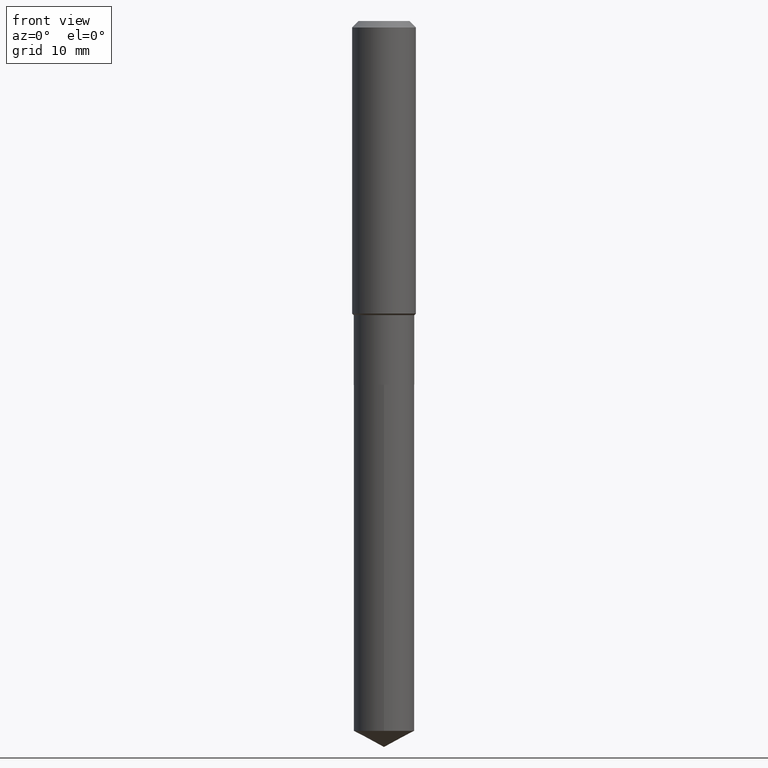
[diagram: clean part render]
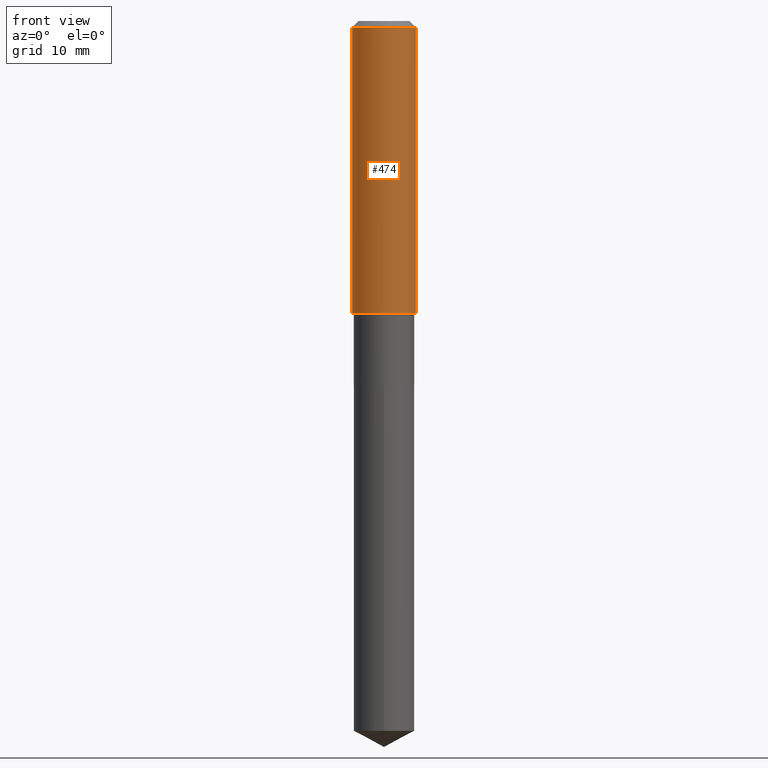
[diagram: same view with one face highlighted and labeled with its STEP entity id]
A machine part, front view. The second image highlights one B-rep face of the part: STEP entity #474.
In plain terms, the highlighted cylindrical surface (edge-blend (fillet) strip) has radius 4.0005 mm, axis along (-0, 0, 1).
Its self-contained STEP definition (entity closure, byte-faithful):
#6 = VECTOR ( 'NONE', #185, 39.37007874015748143 ) ;
#10 = VERTEX_POINT ( 'NONE', #211 ) ;
#21 = CIRCLE ( 'NONE', #332, 0.1575000000000001676 ) ;
#24 = DIRECTION ( 'NONE',  ( -2.445468806185136597E-29, 3.491481338843145583E-15, 1.000000000000000000 ) ) ;
#41 = DIRECTION ( 'NONE',  ( 1.000000000000000000, -6.982962677686267499E-15, 4.876176775795936353E-29 ) ) ;
#47 = CARTESIAN_POINT ( 'NONE',  ( 0.1575000000000000844, -1.099816621735587677E-15, 7.679978421878603638E-30 ) ) ;
#77 = DIRECTION ( 'NONE',  ( 1.000000000000000000, -6.982962677686265922E-15, 0.000000000000000000 ) ) ;
#81 = LINE ( 'NONE', #47, #145 ) ;
#96 = CARTESIAN_POINT ( 'NONE',  ( 3.529545127967007664E-29, -5.039255016352311783E-15, -1.443299999999999805 ) ) ;
#98 = EDGE_CURVE ( 'NONE', #296, #10, #21, .T. ) ;
#120 = CARTESIAN_POINT ( 'NONE',  ( -0.1575000000000000011, -1.455513530440777031E-15, -0.03150000000000019451 ) ) ;
#133 = DIRECTION ( 'NONE',  ( -2.445468806185136597E-29, 3.491481338843145583E-15, 1.000000000000000000 ) ) ;
#145 = VECTOR ( 'NONE', #204, 39.37007874015748143 ) ;
#148 = CARTESIAN_POINT ( 'NONE',  ( -0.1575000000000000844, 1.119104808822158392E-15, -7.747322767151481189E-30 ) ) ;
#166 = ORIENTED_EDGE ( 'NONE', *, *, #217, .T. ) ;
#169 = VERTEX_POINT ( 'NONE', #120 ) ;
#185 = DIRECTION ( 'NONE',  ( -2.445468806185136877E-29, 3.491481338843145188E-15, 1.000000000000000000 ) ) ;
#202 = CARTESIAN_POINT ( 'NONE',  ( 7.703226739483226971E-31, -1.099816621735597538E-16, -0.03150000000000019451 ) ) ;
#204 = DIRECTION ( 'NONE',  ( -2.445468806185136877E-29, 3.491481338843145188E-15, 1.000000000000000000 ) ) ;
#211 = CARTESIAN_POINT ( 'NONE',  ( 0.1575000000000001676, -6.139071638087900053E-15, -1.443299999999999805 ) ) ;
#217 = EDGE_CURVE ( 'NONE', #10, #338, #81, .T. ) ;
#231 = CIRCLE ( 'NONE', #321, 0.1575000000000000011 ) ;
#248 = CYLINDRICAL_SURFACE ( 'NONE', #273, 0.1575000000000000844 ) ;
#273 = AXIS2_PLACEMENT_3D ( 'NONE', #395, #133, #41 ) ;
#296 = VERTEX_POINT ( 'NONE', #416 ) ;
#302 = FACE_OUTER_BOUND ( 'NONE', #407, .T. ) ;
#321 = AXIS2_PLACEMENT_3D ( 'NONE', #202, #24, #77 ) ;
#324 = DIRECTION ( 'NONE',  ( 1.000000000000000000, -6.982962677686267499E-15, 0.000000000000000000 ) ) ;
#332 = AXIS2_PLACEMENT_3D ( 'NONE', #96, #415, #324 ) ;
#338 = VERTEX_POINT ( 'NONE', #427 ) ;
#363 = EDGE_CURVE ( 'NONE', #296, #169, #379, .T. ) ;
#379 = LINE ( 'NONE', #148, #6 ) ;
#394 = ORIENTED_EDGE ( 'NONE', *, *, #98, .T. ) ;
#395 = CARTESIAN_POINT ( 'NONE',  ( 0.000000000000000000, 0.000000000000000000, 0.000000000000000000 ) ) ;
#407 = EDGE_LOOP ( 'NONE', ( #434, #394, #166, #454 ) ) ;
#415 = DIRECTION ( 'NONE',  ( -2.445468806185136597E-29, 3.491481338843145583E-15, 1.000000000000000000 ) ) ;
#416 = CARTESIAN_POINT ( 'NONE',  ( -0.1575000000000001676, -3.920150207530152602E-15, -1.443299999999999805 ) ) ;
#427 = CARTESIAN_POINT ( 'NONE',  ( 0.1575000000000000011, -1.209798283909146741E-15, -0.03150000000000019451 ) ) ;
#434 = ORIENTED_EDGE ( 'NONE', *, *, #363, .F. ) ;
#454 = ORIENTED_EDGE ( 'NONE', *, *, #486, .F. ) ;
#474 = ADVANCED_FACE ( 'NONE', ( #302 ), #248, .T. ) ;
#486 = EDGE_CURVE ( 'NONE', #169, #338, #231, .T. ) ;